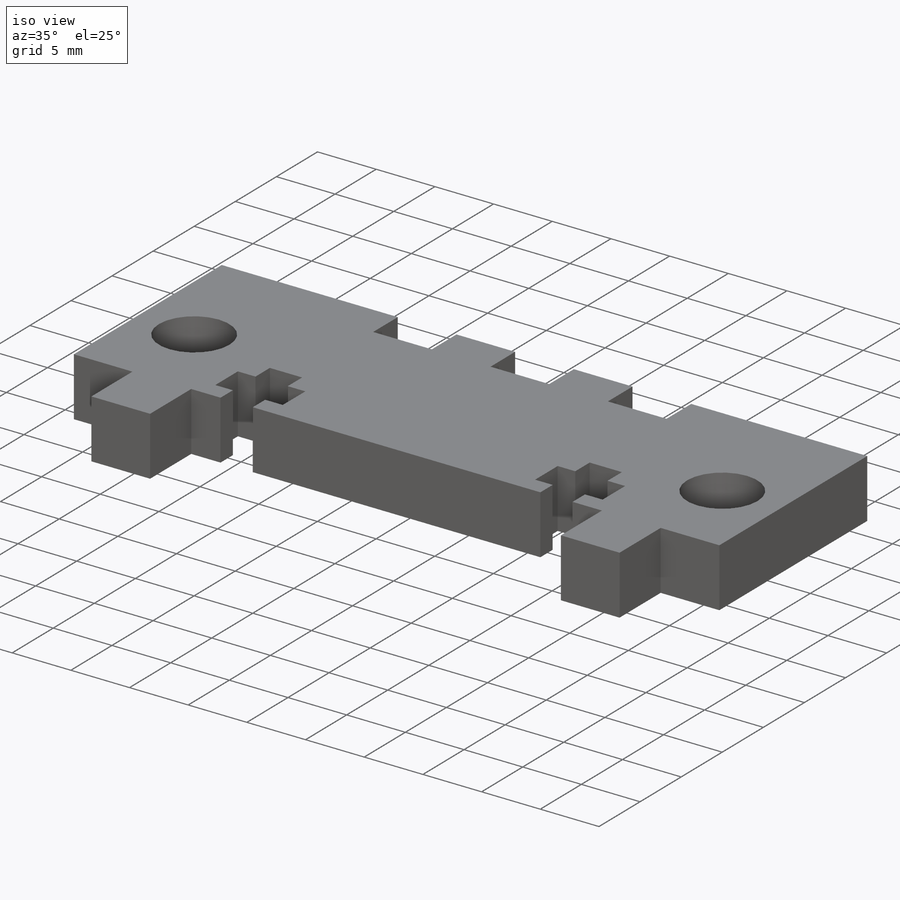
[diagram: iso view]
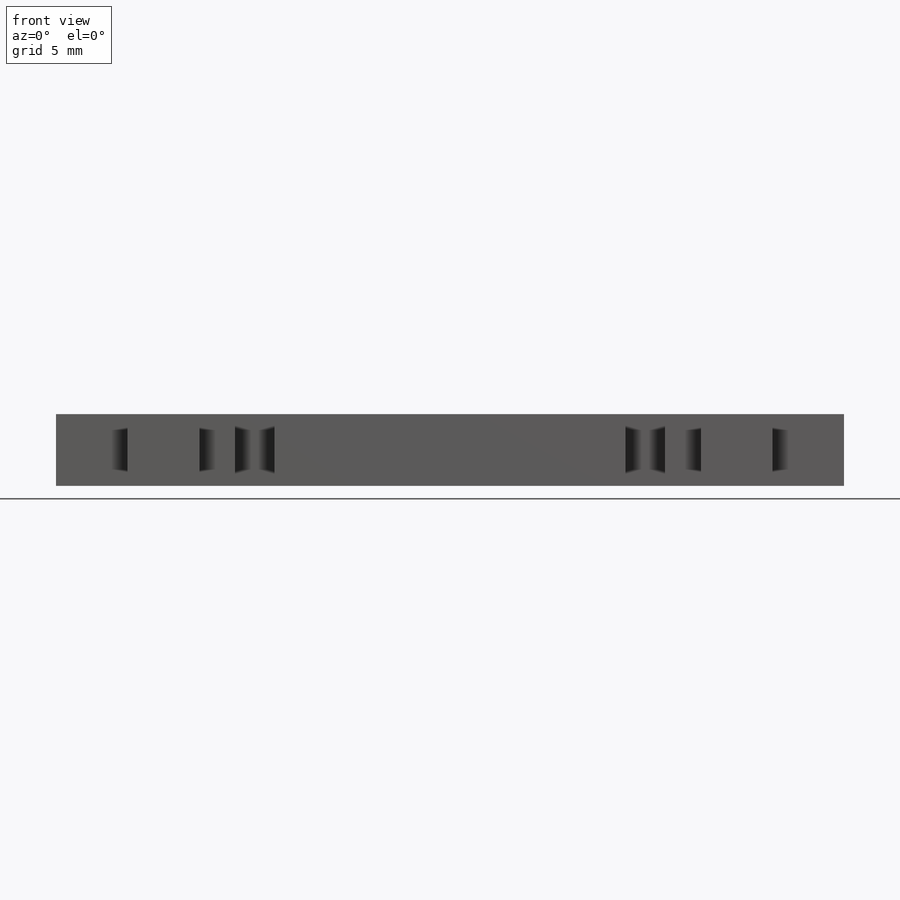
[diagram: front view]
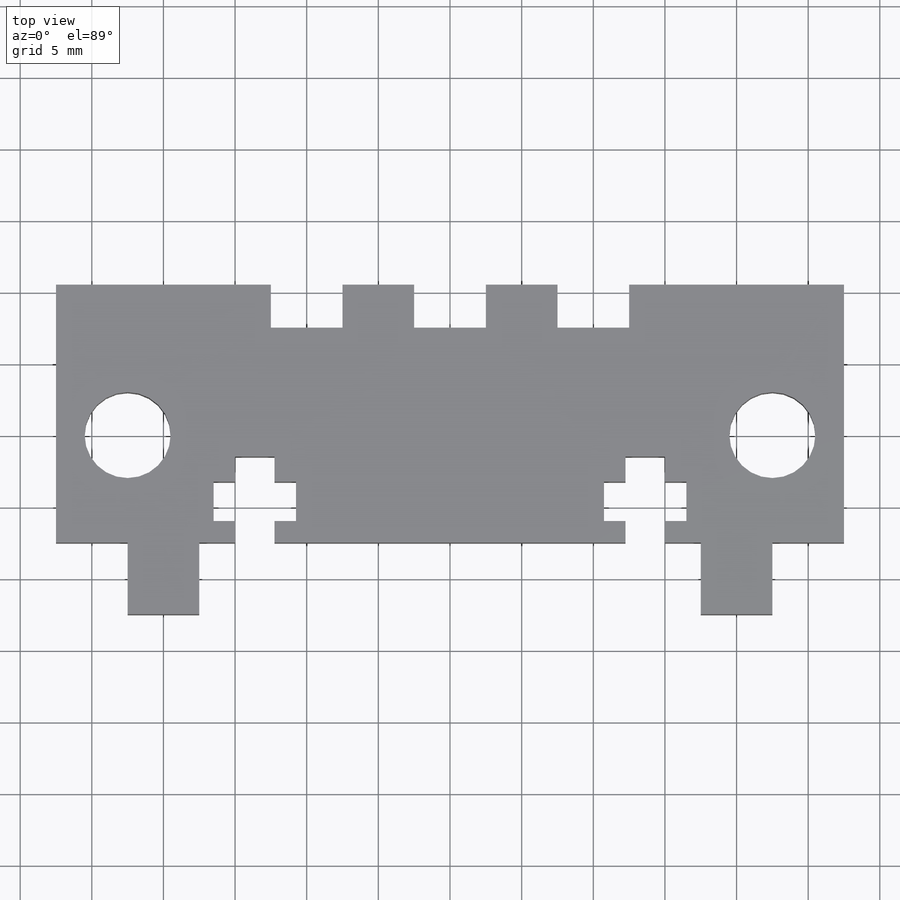
[diagram: top view]
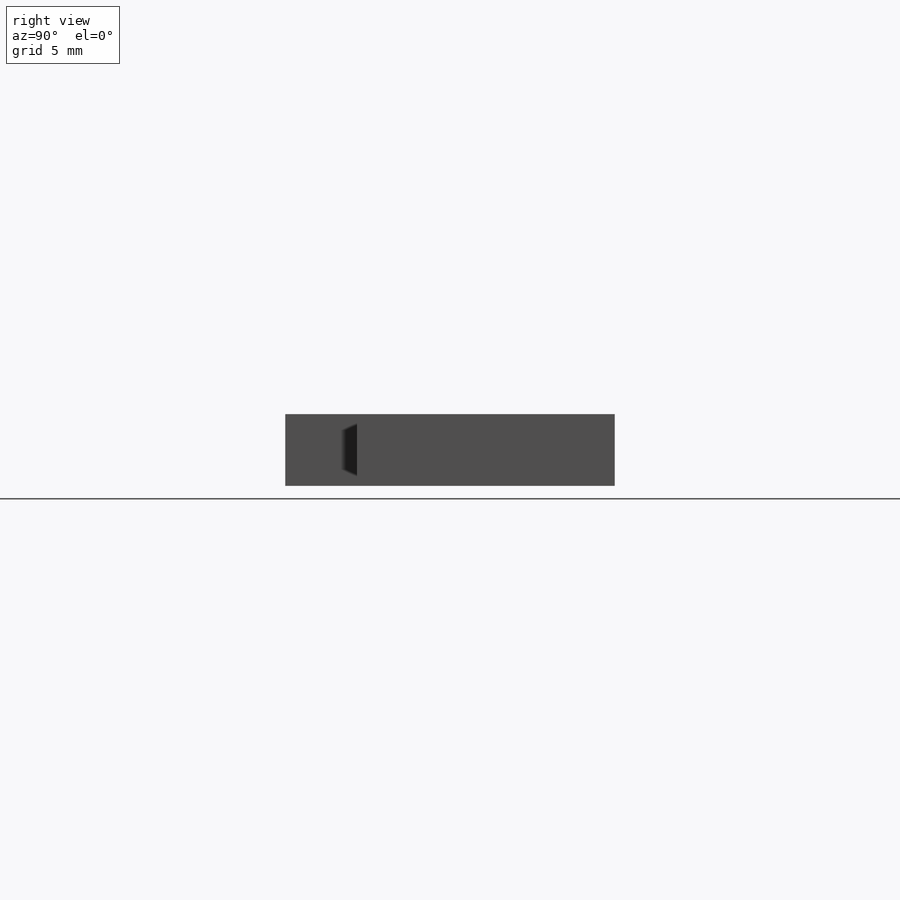
[diagram: right view]
SOLIDWORKS PART (.sldprt)
format: sldprt  version: not decoded by parser v0  size: 547,840 bytes
history: native  units: mm
features: sketch x5, cut_extrude x4, plane x3, material x1, extrude x1 (+10 scaffold rows collapsed)
feature tree (24):
  scaffold x10  (default folders/planes/origin — collapsed)
  material  "Balsa"
  plane  "Plan de face"
  plane  "Plan de dessus"
  plane  "Plan de droite"
  sketch  "Esquisse1"  dims[c1.D1=23.0mm c1.D2=55.0mm c1.D3=27.5mm c1.D4=~33.507571mm c2.D3=27.5mm c2.D4=7.5mm]
  extrude  "Boss.-Extru.1"  Depth=5mm
  sketch  "Esquisse2"  dims[c1.D1=6.0mm c1.D2=6.0mm c2.D1=6.0mm c2.D2=6.0mm c2.D3=40.0mm c2.D4=~47.603163mm c3.D3=45.0mm c3.D4=22.5mm c3.D5=0.0mm c3.D6=0.0mm c4.D3=45.0mm c4.D4=22.5mm c4.D5=10.5mm]
  cut_extrude  "Enlèv. mat.-Extru.1"  Depth=5mm
  sketch  "Esquisse4"  dims[c1.D1=2.75mm c1.D2=2.75mm c1.D3=1.5mm c1.D4=1.5mm c1.D5=1.5mm c1.D6=1.125mm c1.D7=1.75mm c1.D8=1.75mm c1.D9=2.75mm c1.D10=2.75mm c1.D11=6.0mm c1.D12=1.5mm c2.D6=14.625mm c2.D12=2.75mm c3.D6=1.5mm c3.D11=1.5mm c3.D8=1.75mm c4.D11=5.0mm c4.D12=11.0mm]
  cut_extrude  "Enlèv. mat.-Extru.2"  Depth=10mm
  sketch  "Esquisse5"  dims[c1.D1=5.0mm c1.D2=5.0mm c1.D3=5.0mm c1.D4=16.0mm c1.D5=5.0mm c1.D6=5.0mm c1.D7=5.0mm c1.D8=9.5mm c1.D9=5.0mm c2.D8=8.0mm c2.D1=5.0mm c2.D2=5.0mm c2.D3=5.0mm c2.D4=5.0mm c2.D5=5.0mm c2.D6=5.0mm]
  cut_extrude  "Enlèv. mat.-Extru.3"  [1 undecoded]
  sketch  "Esquisse7"  dims[D1=3.0mm D2=5.0mm D3=5.0mm D4=5.0mm D5=3.0mm D6=3.0mm D7=5.0mm D8=5.0mm D9=2.5mm]
  cut_extrude  "Enlèv. mat.-Extru.4"  [1 undecoded]
decode coverage: 8 of 10 modeling features carry decoded parameters
note: ~ marks probable driven/reference dimensions
note: 2 parameter values undecoded
note: suppression state not decoded; provenance and decode notes live in map.json
